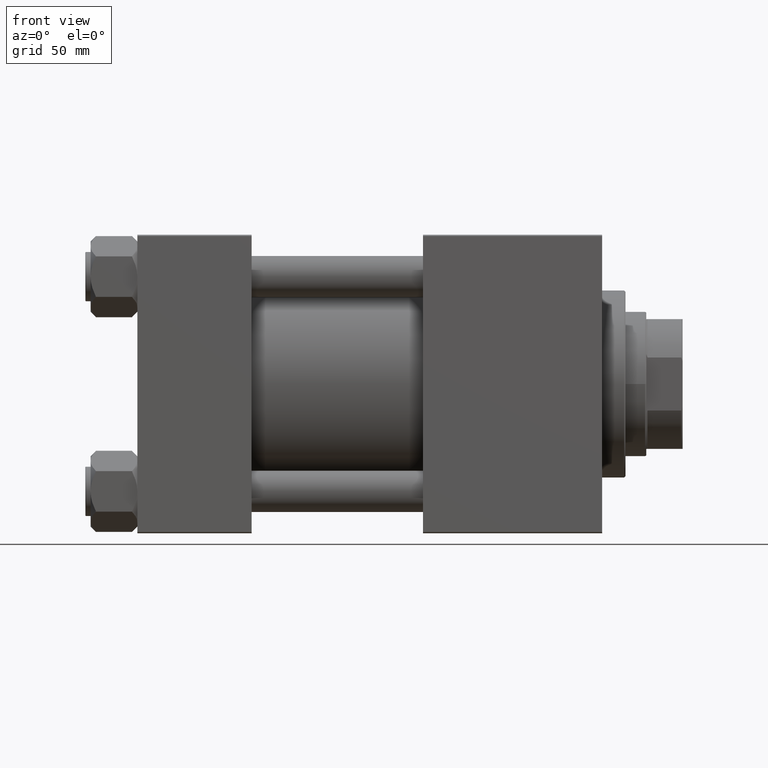
[diagram: clean part render]
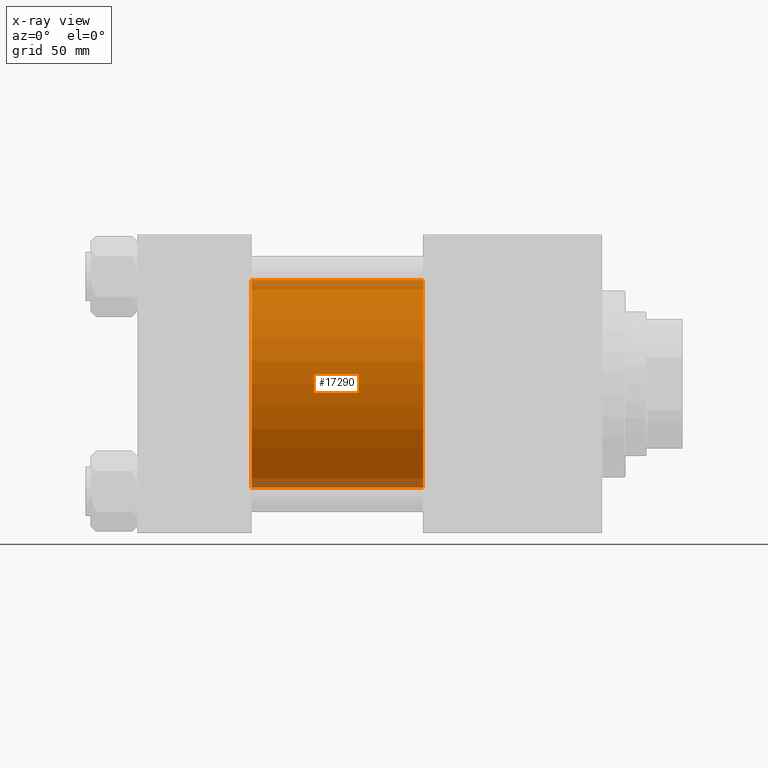
[diagram: x-ray — body ghosted, one internal face saturated and labeled with its STEP entity id]
A machine part, front view, then the same camera in x-ray: the body is ghosted and one INTERNAL B-rep face — a face not visible from any outside direction — is saturated and labeled: STEP entity #17290.
In plain terms, the highlighted cylindrical surface (partial cylindrical patch) has radius 40 mm, axis along (-1, -0, -0).
Its self-contained STEP definition (entity closure, byte-faithful):
#623 = CARTESIAN_POINT ( 'NONE',  ( 110.0000000000000000, 2.296501982624201990E-15, -40.00000000000000000 ) ) ;
#1670 = EDGE_CURVE ( 'NONE', #20776, #33665, #5595, .T. ) ;
#2097 = EDGE_CURVE ( 'NONE', #26503, #27046, #18073, .T. ) ;
#3907 = FACE_OUTER_BOUND ( 'NONE', #30026, .T. ) ;
#5463 = VECTOR ( 'NONE', #14241, 1000.000000000000000 ) ;
#5595 = LINE ( 'NONE', #40403, #36507 ) ;
#7229 = ORIENTED_EDGE ( 'NONE', *, *, #8955, .F. ) ;
#7931 = DIRECTION ( 'NONE',  ( 0.000000000000000000, 0.000000000000000000, -1.000000000000000000 ) ) ;
#8244 = DIRECTION ( 'NONE',  ( 0.000000000000000000, 0.000000000000000000, 1.000000000000000000 ) ) ;
#8955 = EDGE_CURVE ( 'NONE', #27046, #33665, #37531, .T. ) ;
#9963 = CARTESIAN_POINT ( 'NONE',  ( 44.00000000000000000, -2.602085213965210642E-15, 0.000000000000000000 ) ) ;
#10579 = ORIENTED_EDGE ( 'NONE', *, *, #1670, .T. ) ;
#10911 = ORIENTED_EDGE ( 'NONE', *, *, #33988, .T. ) ;
#12481 = CARTESIAN_POINT ( 'NONE',  ( 110.0000000000000000, -2.602085213965210642E-15, 40.00000000000000000 ) ) ;
#13275 = DIRECTION ( 'NONE',  ( -1.000000000000000000, -0.000000000000000000, -0.000000000000000000 ) ) ;
#14241 = DIRECTION ( 'NONE',  ( -1.000000000000000000, -0.000000000000000000, -0.000000000000000000 ) ) ;
#17290 = ADVANCED_FACE ( 'NONE', ( #3907 ), #35627, .F. ) ;
#18073 = LINE ( 'NONE', #45737, #5463 ) ;
#20776 = VERTEX_POINT ( 'NONE', #623 ) ;
#25369 = CARTESIAN_POINT ( 'NONE',  ( 44.00000000000000000, 2.296501982624201990E-15, -40.00000000000000000 ) ) ;
#25499 = ORIENTED_EDGE ( 'NONE', *, *, #2097, .F. ) ;
#26503 = VERTEX_POINT ( 'NONE', #12481 ) ;
#27046 = VERTEX_POINT ( 'NONE', #44308 ) ;
#27126 = DIRECTION ( 'NONE',  ( 1.000000000000000000, 0.000000000000000000, 0.000000000000000000 ) ) ;
#28574 = AXIS2_PLACEMENT_3D ( 'NONE', #9963, #44795, #40678 ) ;
#30026 = EDGE_LOOP ( 'NONE', ( #10911, #10579, #7229, #25499 ) ) ;
#30793 = DIRECTION ( 'NONE',  ( -1.000000000000000000, -0.000000000000000000, -0.000000000000000000 ) ) ;
#32728 = CIRCLE ( 'NONE', #39269, 40.00000000000000000 ) ;
#33665 = VERTEX_POINT ( 'NONE', #25369 ) ;
#33988 = EDGE_CURVE ( 'NONE', #26503, #20776, #32728, .T. ) ;
#35627 = CYLINDRICAL_SURFACE ( 'NONE', #38531, 40.00000000000000000 ) ;
#36507 = VECTOR ( 'NONE', #13275, 1000.000000000000000 ) ;
#37531 = CIRCLE ( 'NONE', #28574, 40.00000000000000000 ) ;
#38531 = AXIS2_PLACEMENT_3D ( 'NONE', #46933, #30793, #8244 ) ;
#39269 = AXIS2_PLACEMENT_3D ( 'NONE', #42512, #27126, #7931 ) ;
#40403 = CARTESIAN_POINT ( 'NONE',  ( 110.0000000000000000, 2.296501982624201990E-15, -40.00000000000000000 ) ) ;
#40678 = DIRECTION ( 'NONE',  ( 0.000000000000000000, 0.000000000000000000, -1.000000000000000000 ) ) ;
#42512 = CARTESIAN_POINT ( 'NONE',  ( 110.0000000000000000, -2.602085213965210642E-15, 0.000000000000000000 ) ) ;
#44308 = CARTESIAN_POINT ( 'NONE',  ( 44.00000000000000000, -2.602085213965210642E-15, 40.00000000000000000 ) ) ;
#44795 = DIRECTION ( 'NONE',  ( 1.000000000000000000, 0.000000000000000000, 0.000000000000000000 ) ) ;
#45737 = CARTESIAN_POINT ( 'NONE',  ( 110.0000000000000000, -2.602085213965210642E-15, 40.00000000000000000 ) ) ;
#46933 = CARTESIAN_POINT ( 'NONE',  ( 110.0000000000000000, -2.602085213965210642E-15, 0.000000000000000000 ) ) ;